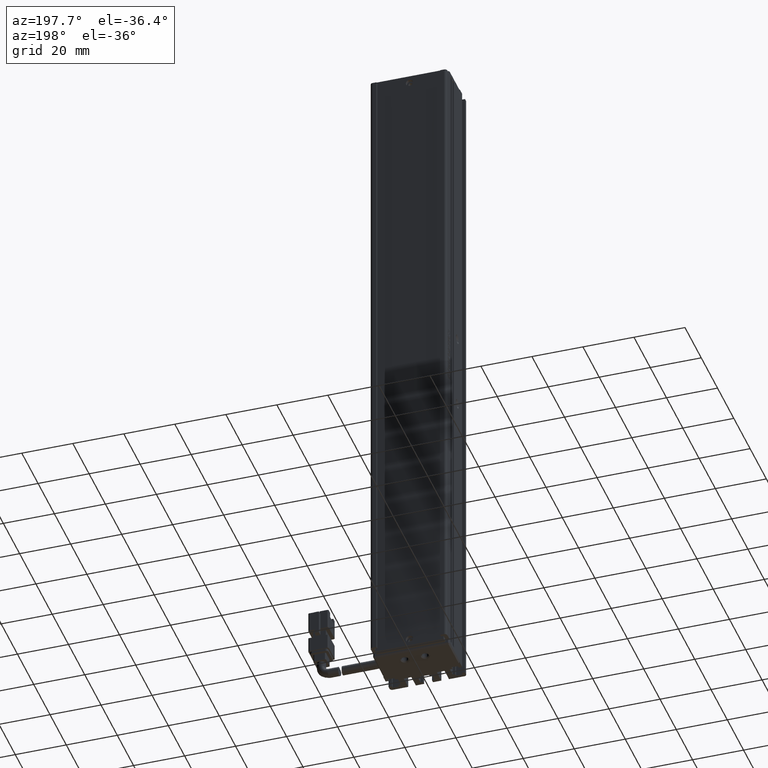
[diagram: clean part render]
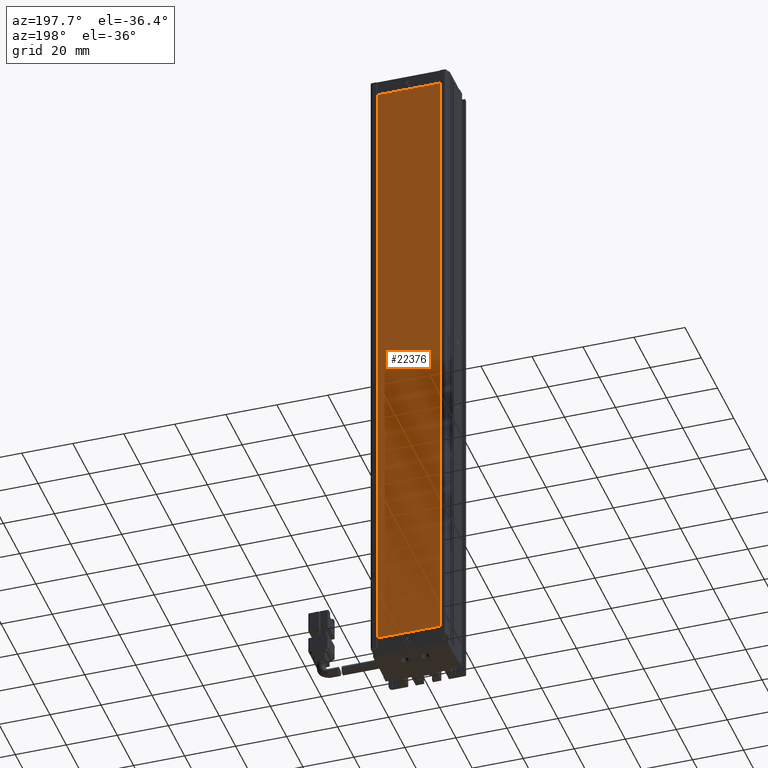
[diagram: same view with one face highlighted and labeled with its STEP entity id]
A machine part, auxiliary view. The second image highlights one B-rep face of the part: STEP entity #22376.
In plain terms, the highlighted planar face has unit normal (0, 1, 0).
Its self-contained STEP definition (entity closure, byte-faithful):
#1041 = DIRECTION ( 'NONE',  ( 0.0000000000000000000, 0.0000000000000000000, 1.000000000000000000 ) ) ;
#1300 = DIRECTION ( 'NONE',  ( 0.0000000000000000000, 1.000000000000000000, 0.0000000000000000000 ) ) ;
#1428 = CARTESIAN_POINT ( 'NONE',  ( 28.52537974683541600, 34.29594479660387000, -240.8500000000000200 ) ) ;
#1876 = EDGE_CURVE ( 'NONE', #38578, #8443, #16105, .T. ) ;
#5680 = CARTESIAN_POINT ( 'NONE',  ( 28.52537974683541600, 34.29594479660387000, 11.14999999999999300 ) ) ;
#8443 = VERTEX_POINT ( 'NONE', #40846 ) ;
#8709 = ORIENTED_EDGE ( 'NONE', *, *, #1876, .T. ) ;
#13504 = VECTOR ( 'NONE', #31541, 1000.000000000000000 ) ;
#16105 = LINE ( 'NONE', #1428, #37507 ) ;
#16124 = EDGE_CURVE ( 'NONE', #8443, #24794, #49422, .T. ) ;
#17875 = ORIENTED_EDGE ( 'NONE', *, *, #41165, .T. ) ;
#22376 = ADVANCED_FACE ( 'NONE', ( #24904 ), #35339, .T. ) ;
#24794 = VERTEX_POINT ( 'NONE', #55495 ) ;
#24904 = FACE_OUTER_BOUND ( 'NONE', #44961, .T. ) ;
#25290 = VECTOR ( 'NONE', #29287, 1000.000000000000000 ) ;
#26965 = CARTESIAN_POINT ( 'NONE',  ( 0.0000000000000000000, 34.29594479660387000, 0.0000000000000000000 ) ) ;
#27271 = CARTESIAN_POINT ( 'NONE',  ( 53.32537974683541600, 34.29594479660387000, -240.8500000000000200 ) ) ;
#29287 = DIRECTION ( 'NONE',  ( 1.000000000000000000, 0.0000000000000000000, 0.0000000000000000000 ) ) ;
#31039 = VERTEX_POINT ( 'NONE', #53763 ) ;
#31201 = DIRECTION ( 'NONE',  ( 0.0000000000000000000, -0.0000000000000000000, 1.000000000000000000 ) ) ;
#31541 = DIRECTION ( 'NONE',  ( -1.000000000000000000, 0.0000000000000000000, 0.0000000000000000000 ) ) ;
#34748 = AXIS2_PLACEMENT_3D ( 'NONE', #26965, #1300, #31201 ) ;
#35339 = PLANE ( 'NONE',  #34748 ) ;
#37507 = VECTOR ( 'NONE', #1041, 1000.000000000000000 ) ;
#38578 = VERTEX_POINT ( 'NONE', #41112 ) ;
#40846 = CARTESIAN_POINT ( 'NONE',  ( 28.52537974683541600, 34.29594479660387000, 11.14999999999999300 ) ) ;
#40857 = ORIENTED_EDGE ( 'NONE', *, *, #16124, .T. ) ;
#41112 = CARTESIAN_POINT ( 'NONE',  ( 28.52537974683541600, 34.29594479660387000, -240.8500000000000200 ) ) ;
#41165 = EDGE_CURVE ( 'NONE', #31039, #38578, #47679, .T. ) ;
#41345 = VECTOR ( 'NONE', #52010, 1000.000000000000000 ) ;
#44233 = ORIENTED_EDGE ( 'NONE', *, *, #46965, .T. ) ;
#44961 = EDGE_LOOP ( 'NONE', ( #44233, #17875, #8709, #40857 ) ) ;
#46965 = EDGE_CURVE ( 'NONE', #24794, #31039, #52718, .T. ) ;
#47679 = LINE ( 'NONE', #27271, #13504 ) ;
#47735 = CARTESIAN_POINT ( 'NONE',  ( 53.32537974683541600, 34.29594479660387000, 11.14999999999999300 ) ) ;
#49422 = LINE ( 'NONE', #5680, #25290 ) ;
#52010 = DIRECTION ( 'NONE',  ( 0.0000000000000000000, 0.0000000000000000000, -1.000000000000000000 ) ) ;
#52718 = LINE ( 'NONE', #47735, #41345 ) ;
#53763 = CARTESIAN_POINT ( 'NONE',  ( 53.32537974683541600, 34.29594479660387000, -240.8500000000000200 ) ) ;
#55495 = CARTESIAN_POINT ( 'NONE',  ( 53.32537974683541600, 34.29594479660387000, 11.14999999999999300 ) ) ;